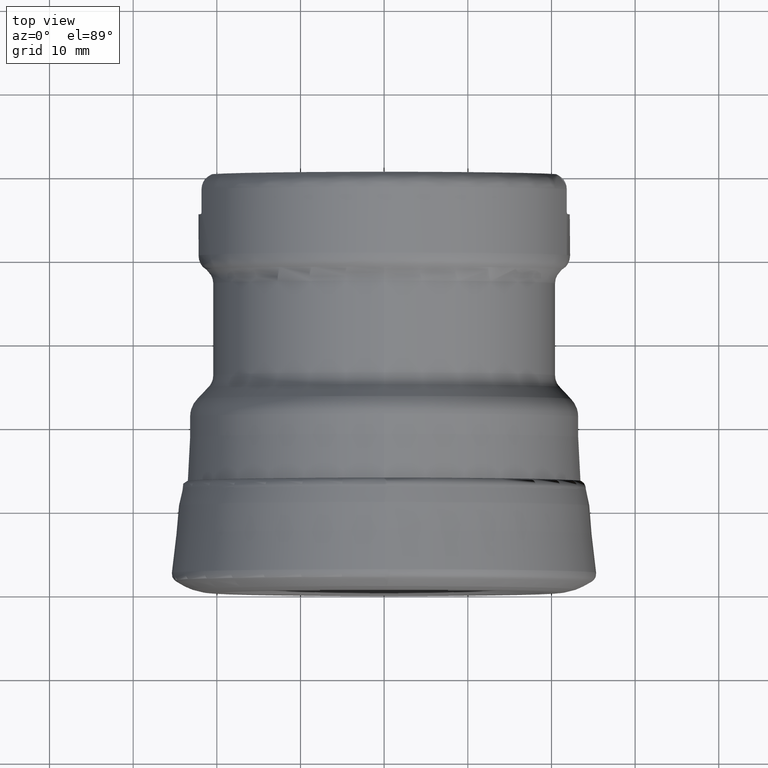
[diagram: clean part render]
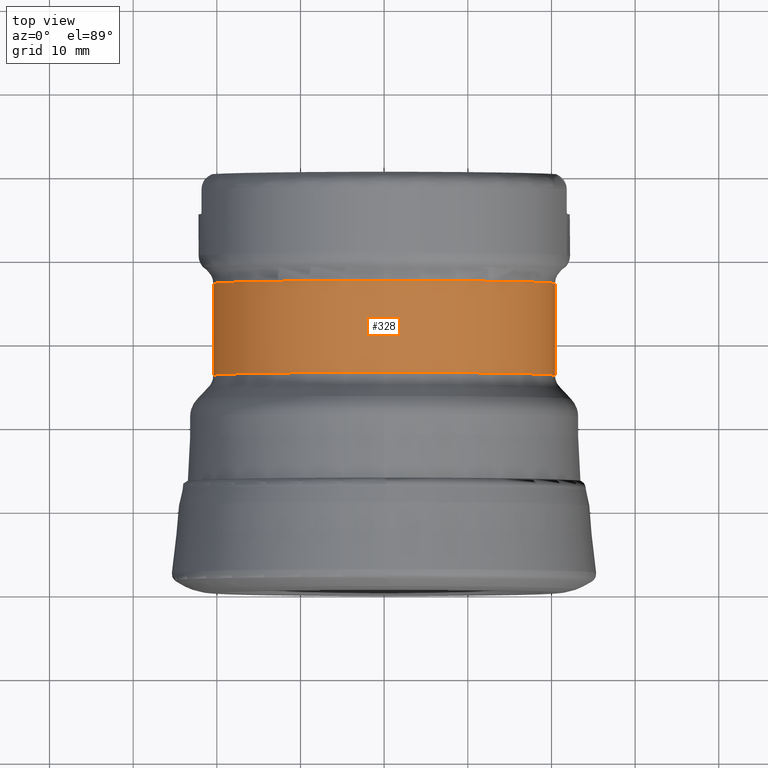
[diagram: same view with one face highlighted and labeled with its STEP entity id]
A machine part, top view. The second image highlights one B-rep face of the part: STEP entity #328.
In plain terms, the highlighted cylindrical surface (bore or boss wall) has radius 20.425 mm, axis along (0, 1, 0).
Its self-contained STEP definition (entity closure, byte-faithful):
#328=ADVANCED_FACE('',(#415,#416),#397,.T.);
#397=CYLINDRICAL_SURFACE('',#1151,20.425);
#415=FACE_BOUND('',#515,.T.);
#416=FACE_BOUND('',#516,.T.);
#515=EDGE_LOOP('',(#658));
#516=EDGE_LOOP('',(#659));
#658=ORIENTED_EDGE('',*,*,#979,.T.);
#659=ORIENTED_EDGE('',*,*,#980,.T.);
#884=VERTEX_POINT('',#1708);
#885=VERTEX_POINT('',#1710);
#979=EDGE_CURVE('',#884,#884,#1078,.T.);
#980=EDGE_CURVE('',#885,#885,#1079,.T.);
#1078=CIRCLE('',#1149,20.425);
#1079=CIRCLE('',#1150,20.425);
#1149=AXIS2_PLACEMENT_3D('',#1707,#1288,#1289);
#1150=AXIS2_PLACEMENT_3D('',#1709,#1290,#1291);
#1151=AXIS2_PLACEMENT_3D('',#1711,#1292,#1293);
#1288=DIRECTION('',(0.,-1.,0.));
#1289=DIRECTION('',(0.,0.,1.));
#1290=DIRECTION('',(0.,1.,0.));
#1291=DIRECTION('',(0.,0.,1.));
#1292=DIRECTION('',(0.,1.,0.));
#1293=DIRECTION('',(0.,0.,1.));
#1707=CARTESIAN_POINT('',(0.,37.0060689770764,0.));
#1708=CARTESIAN_POINT('',(0.,37.0060689770764,20.425));
#1709=CARTESIAN_POINT('',(0.,26.0284271247432,0.));
#1710=CARTESIAN_POINT('',(0.,26.0284271247432,20.425));
#1711=CARTESIAN_POINT('',(0.,50.2,0.));